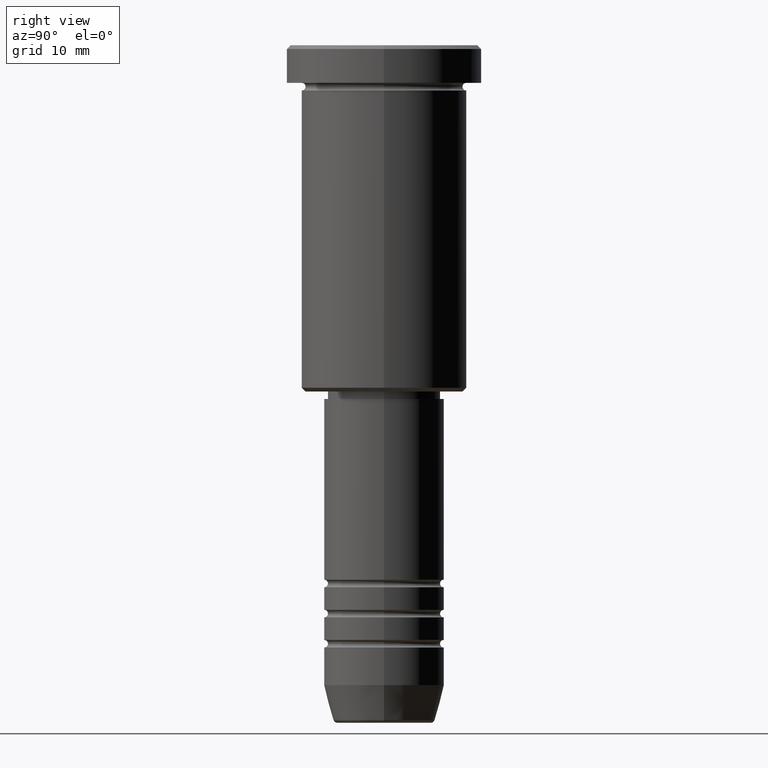
[diagram: clean part render]
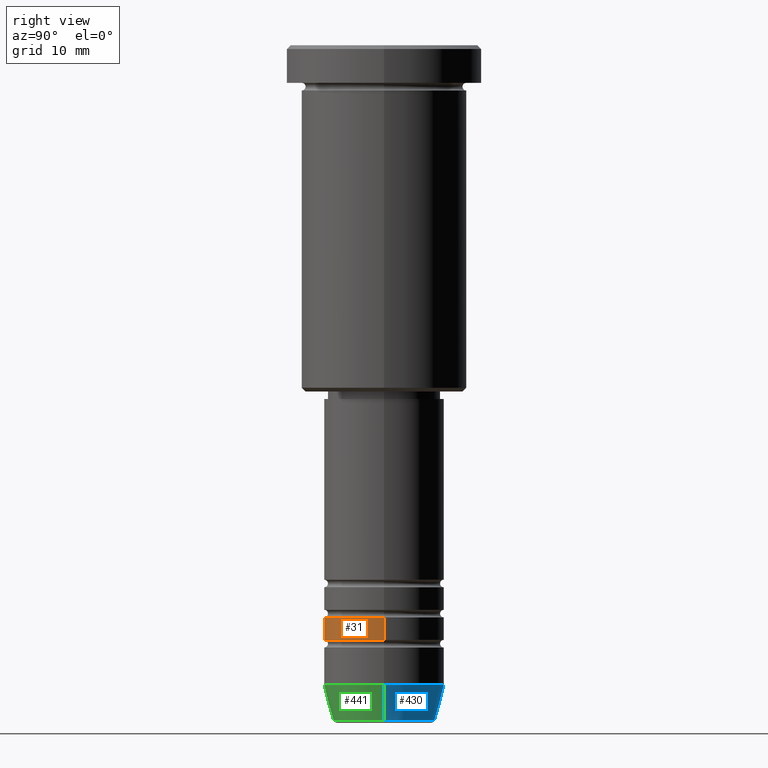
[diagram: same view with three faces highlighted in distinct colors, each labeled with its STEP entity id]
A machine part, right view with three faces highlighted in distinct colors.
Their STEP definitions:

[orange] entity #31 — the highlighted cylindrical surface (partial cylindrical patch) has radius 8 mm, axis along (-0, -0, 1).
#31 = ADVANCED_FACE ( 'NONE', ( #406 ), #231, .T. ) ;
#51 = CARTESIAN_POINT ( 'NONE',  ( 8.000000000000000000, 0.000000000000000000, -78.99999999999997158 ) ) ;
#63 = LINE ( 'NONE', #433, #374 ) ;
#108 = DIRECTION ( 'NONE',  ( -0.000000000000000000, -0.000000000000000000, 1.000000000000000000 ) ) ;
#115 = CARTESIAN_POINT ( 'NONE',  ( 0.000000000000000000, 0.000000000000000000, -78.99999999999997158 ) ) ;
#187 = VERTEX_POINT ( 'NONE', #1019 ) ;
#200 = AXIS2_PLACEMENT_3D ( 'NONE', #1145, #310, #1045 ) ;
#231 = CYLINDRICAL_SURFACE ( 'NONE', #200, 8.000000000000000000 ) ;
#310 = DIRECTION ( 'NONE',  ( -0.000000000000000000, -0.000000000000000000, 1.000000000000000000 ) ) ;
#336 = VECTOR ( 'NONE', #906, 1000.000000000000000 ) ;
#359 = LINE ( 'NONE', #454, #336 ) ;
#374 = VECTOR ( 'NONE', #597, 1000.000000000000000 ) ;
#397 = CARTESIAN_POINT ( 'NONE',  ( -8.000000000000000000, 9.797174393178825657E-16, -78.99999999999997158 ) ) ;
#406 = FACE_OUTER_BOUND ( 'NONE', #1131, .T. ) ;
#421 = VERTEX_POINT ( 'NONE', #458 ) ;
#433 = CARTESIAN_POINT ( 'NONE',  ( 8.000000000000000000, 0.000000000000000000, 0.000000000000000000 ) ) ;
#454 = CARTESIAN_POINT ( 'NONE',  ( -8.000000000000000000, 9.797174393178825657E-16, 0.000000000000000000 ) ) ;
#458 = CARTESIAN_POINT ( 'NONE',  ( -8.000000000000000000, 9.797174393178825657E-16, -75.99999999999998579 ) ) ;
#468 = EDGE_CURVE ( 'NONE', #506, #421, #359, .T. ) ;
#494 = EDGE_CURVE ( 'NONE', #421, #187, #638, .T. ) ;
#506 = VERTEX_POINT ( 'NONE', #397 ) ;
#563 = CIRCLE ( 'NONE', #721, 8.000000000000000000 ) ;
#581 = EDGE_CURVE ( 'NONE', #506, #728, #563, .T. ) ;
#597 = DIRECTION ( 'NONE',  ( -0.000000000000000000, -0.000000000000000000, 1.000000000000000000 ) ) ;
#638 = CIRCLE ( 'NONE', #739, 8.000000000000000000 ) ;
#694 = ORIENTED_EDGE ( 'NONE', *, *, #581, .T. ) ;
#721 = AXIS2_PLACEMENT_3D ( 'NONE', #115, #108, #936 ) ;
#728 = VERTEX_POINT ( 'NONE', #51 ) ;
#729 = DIRECTION ( 'NONE',  ( -0.000000000000000000, -0.000000000000000000, 1.000000000000000000 ) ) ;
#739 = AXIS2_PLACEMENT_3D ( 'NONE', #807, #729, #1169 ) ;
#807 = CARTESIAN_POINT ( 'NONE',  ( 0.000000000000000000, 0.000000000000000000, -75.99999999999998579 ) ) ;
#906 = DIRECTION ( 'NONE',  ( -0.000000000000000000, -0.000000000000000000, 1.000000000000000000 ) ) ;
#921 = ORIENTED_EDGE ( 'NONE', *, *, #494, .F. ) ;
#936 = DIRECTION ( 'NONE',  ( 1.000000000000000000, 0.000000000000000000, 0.000000000000000000 ) ) ;
#941 = ORIENTED_EDGE ( 'NONE', *, *, #1156, .T. ) ;
#1019 = CARTESIAN_POINT ( 'NONE',  ( 8.000000000000000000, 0.000000000000000000, -75.99999999999998579 ) ) ;
#1045 = DIRECTION ( 'NONE',  ( 1.000000000000000000, 0.000000000000000000, 0.000000000000000000 ) ) ;
#1059 = ORIENTED_EDGE ( 'NONE', *, *, #468, .F. ) ;
#1131 = EDGE_LOOP ( 'NONE', ( #1059, #694, #941, #921 ) ) ;
#1145 = CARTESIAN_POINT ( 'NONE',  ( 0.000000000000000000, 0.000000000000000000, 0.000000000000000000 ) ) ;
#1156 = EDGE_CURVE ( 'NONE', #728, #187, #63, .T. ) ;
#1169 = DIRECTION ( 'NONE',  ( 1.000000000000000000, 0.000000000000000000, 0.000000000000000000 ) ) ;

[blue] entity #430 — the highlighted conical surface has half-angle 15 deg.
#7 = AXIS2_PLACEMENT_3D ( 'NONE', #970, #515, #247 ) ;
#9 = DIRECTION ( 'NONE',  ( 1.000000000000000000, 0.000000000000000000, 0.000000000000000000 ) ) ;
#22 = LINE ( 'NONE', #666, #705 ) ;
#46 = VERTEX_POINT ( 'NONE', #326 ) ;
#156 = CARTESIAN_POINT ( 'NONE',  ( -6.759553456999437770, 9.037619948979306213E-16, -89.62940952255125637 ) ) ;
#208 = ORIENTED_EDGE ( 'NONE', *, *, #1036, .F. ) ;
#235 = VERTEX_POINT ( 'NONE', #156 ) ;
#240 = CONICAL_SURFACE ( 'NONE', #255, 8.000000000000000000, 0.2617993877991502405 ) ;
#247 = DIRECTION ( 'NONE',  ( 1.000000000000000000, 0.000000000000000000, 0.000000000000000000 ) ) ;
#255 = AXIS2_PLACEMENT_3D ( 'NONE', #814, #738, #745 ) ;
#282 = FACE_OUTER_BOUND ( 'NONE', #742, .T. ) ;
#326 = CARTESIAN_POINT ( 'NONE',  ( 6.759553456999436882, 0.000000000000000000, -89.62940952255125637 ) ) ;
#332 = EDGE_CURVE ( 'NONE', #46, #235, #965, .T. ) ;
#430 = ADVANCED_FACE ( 'NONE', ( #282 ), #240, .T. ) ;
#440 = DIRECTION ( 'NONE',  ( -0.2588190451025214611, 3.169619151431774186E-17, 0.9659258262890679791 ) ) ;
#465 = CARTESIAN_POINT ( 'NONE',  ( 0.000000000000000000, 0.000000000000000000, -89.62940952255125637 ) ) ;
#488 = VECTOR ( 'NONE', #440, 1000.000000000000114 ) ;
#489 = DIRECTION ( 'NONE',  ( 0.2588190451025214611, 0.000000000000000000, 0.9659258262890679791 ) ) ;
#515 = DIRECTION ( 'NONE',  ( -0.000000000000000000, -0.000000000000000000, 1.000000000000000000 ) ) ;
#573 = ORIENTED_EDGE ( 'NONE', *, *, #332, .T. ) ;
#666 = CARTESIAN_POINT ( 'NONE',  ( 8.000000000000000000, 0.000000000000000000, -84.99999999999998579 ) ) ;
#686 = EDGE_CURVE ( 'NONE', #789, #692, #930, .T. ) ;
#692 = VERTEX_POINT ( 'NONE', #1152 ) ;
#705 = VECTOR ( 'NONE', #489, 1000.000000000000114 ) ;
#738 = DIRECTION ( 'NONE',  ( -0.000000000000000000, -0.000000000000000000, 1.000000000000000000 ) ) ;
#742 = EDGE_LOOP ( 'NONE', ( #573, #1137, #818, #208 ) ) ;
#745 = DIRECTION ( 'NONE',  ( 1.000000000000000000, 0.000000000000000000, 0.000000000000000000 ) ) ;
#751 = EDGE_CURVE ( 'NONE', #235, #692, #876, .T. ) ;
#789 = VERTEX_POINT ( 'NONE', #1160 ) ;
#794 = CARTESIAN_POINT ( 'NONE',  ( -8.000000000000000000, 9.797174393178825657E-16, -84.99999999999998579 ) ) ;
#798 = AXIS2_PLACEMENT_3D ( 'NONE', #465, #1108, #9 ) ;
#814 = CARTESIAN_POINT ( 'NONE',  ( 0.000000000000000000, 0.000000000000000000, -84.99999999999998579 ) ) ;
#818 = ORIENTED_EDGE ( 'NONE', *, *, #686, .F. ) ;
#876 = LINE ( 'NONE', #794, #488 ) ;
#930 = CIRCLE ( 'NONE', #7, 8.000000000000000000 ) ;
#965 = CIRCLE ( 'NONE', #798, 6.759553456999436882 ) ;
#970 = CARTESIAN_POINT ( 'NONE',  ( 0.000000000000000000, 0.000000000000000000, -84.99999999999998579 ) ) ;
#1036 = EDGE_CURVE ( 'NONE', #46, #789, #22, .T. ) ;
#1108 = DIRECTION ( 'NONE',  ( -0.000000000000000000, -0.000000000000000000, 1.000000000000000000 ) ) ;
#1137 = ORIENTED_EDGE ( 'NONE', *, *, #751, .T. ) ;
#1152 = CARTESIAN_POINT ( 'NONE',  ( -8.000000000000000000, 9.797174393178825657E-16, -84.99999999999998579 ) ) ;
#1160 = CARTESIAN_POINT ( 'NONE',  ( 8.000000000000000000, 0.000000000000000000, -84.99999999999998579 ) ) ;

[green] entity #441 — the highlighted conical surface has half-angle 15 deg.
#22 = LINE ( 'NONE', #666, #705 ) ;
#33 = ORIENTED_EDGE ( 'NONE', *, *, #1051, .T. ) ;
#46 = VERTEX_POINT ( 'NONE', #326 ) ;
#156 = CARTESIAN_POINT ( 'NONE',  ( -6.759553456999437770, 9.037619948979306213E-16, -89.62940952255125637 ) ) ;
#181 = AXIS2_PLACEMENT_3D ( 'NONE', #651, #629, #550 ) ;
#216 = CARTESIAN_POINT ( 'NONE',  ( 0.000000000000000000, 0.000000000000000000, -89.62940952255125637 ) ) ;
#235 = VERTEX_POINT ( 'NONE', #156 ) ;
#257 = AXIS2_PLACEMENT_3D ( 'NONE', #216, #578, #409 ) ;
#326 = CARTESIAN_POINT ( 'NONE',  ( 6.759553456999436882, 0.000000000000000000, -89.62940952255125637 ) ) ;
#409 = DIRECTION ( 'NONE',  ( 1.000000000000000000, 0.000000000000000000, 0.000000000000000000 ) ) ;
#440 = DIRECTION ( 'NONE',  ( -0.2588190451025214611, 3.169619151431774186E-17, 0.9659258262890679791 ) ) ;
#441 = ADVANCED_FACE ( 'NONE', ( #1013 ), #810, .T. ) ;
#488 = VECTOR ( 'NONE', #440, 1000.000000000000114 ) ;
#489 = DIRECTION ( 'NONE',  ( 0.2588190451025214611, 0.000000000000000000, 0.9659258262890679791 ) ) ;
#530 = EDGE_CURVE ( 'NONE', #692, #789, #858, .T. ) ;
#533 = ORIENTED_EDGE ( 'NONE', *, *, #530, .F. ) ;
#550 = DIRECTION ( 'NONE',  ( 1.000000000000000000, 0.000000000000000000, 0.000000000000000000 ) ) ;
#578 = DIRECTION ( 'NONE',  ( -0.000000000000000000, -0.000000000000000000, 1.000000000000000000 ) ) ;
#594 = CARTESIAN_POINT ( 'NONE',  ( 0.000000000000000000, 0.000000000000000000, -84.99999999999998579 ) ) ;
#595 = ORIENTED_EDGE ( 'NONE', *, *, #751, .F. ) ;
#629 = DIRECTION ( 'NONE',  ( -0.000000000000000000, -0.000000000000000000, 1.000000000000000000 ) ) ;
#651 = CARTESIAN_POINT ( 'NONE',  ( 0.000000000000000000, 0.000000000000000000, -84.99999999999998579 ) ) ;
#666 = CARTESIAN_POINT ( 'NONE',  ( 8.000000000000000000, 0.000000000000000000, -84.99999999999998579 ) ) ;
#692 = VERTEX_POINT ( 'NONE', #1152 ) ;
#705 = VECTOR ( 'NONE', #489, 1000.000000000000114 ) ;
#726 = EDGE_LOOP ( 'NONE', ( #595, #33, #778, #533 ) ) ;
#751 = EDGE_CURVE ( 'NONE', #235, #692, #876, .T. ) ;
#758 = CIRCLE ( 'NONE', #257, 6.759553456999436882 ) ;
#778 = ORIENTED_EDGE ( 'NONE', *, *, #1036, .T. ) ;
#789 = VERTEX_POINT ( 'NONE', #1160 ) ;
#794 = CARTESIAN_POINT ( 'NONE',  ( -8.000000000000000000, 9.797174393178825657E-16, -84.99999999999998579 ) ) ;
#810 = CONICAL_SURFACE ( 'NONE', #181, 8.000000000000000000, 0.2617993877991502405 ) ;
#840 = DIRECTION ( 'NONE',  ( -0.000000000000000000, -0.000000000000000000, 1.000000000000000000 ) ) ;
#858 = CIRCLE ( 'NONE', #1134, 8.000000000000000000 ) ;
#876 = LINE ( 'NONE', #794, #488 ) ;
#1013 = FACE_OUTER_BOUND ( 'NONE', #726, .T. ) ;
#1036 = EDGE_CURVE ( 'NONE', #46, #789, #22, .T. ) ;
#1049 = DIRECTION ( 'NONE',  ( 1.000000000000000000, 0.000000000000000000, 0.000000000000000000 ) ) ;
#1051 = EDGE_CURVE ( 'NONE', #235, #46, #758, .T. ) ;
#1134 = AXIS2_PLACEMENT_3D ( 'NONE', #594, #840, #1049 ) ;
#1152 = CARTESIAN_POINT ( 'NONE',  ( -8.000000000000000000, 9.797174393178825657E-16, -84.99999999999998579 ) ) ;
#1160 = CARTESIAN_POINT ( 'NONE',  ( 8.000000000000000000, 0.000000000000000000, -84.99999999999998579 ) ) ;